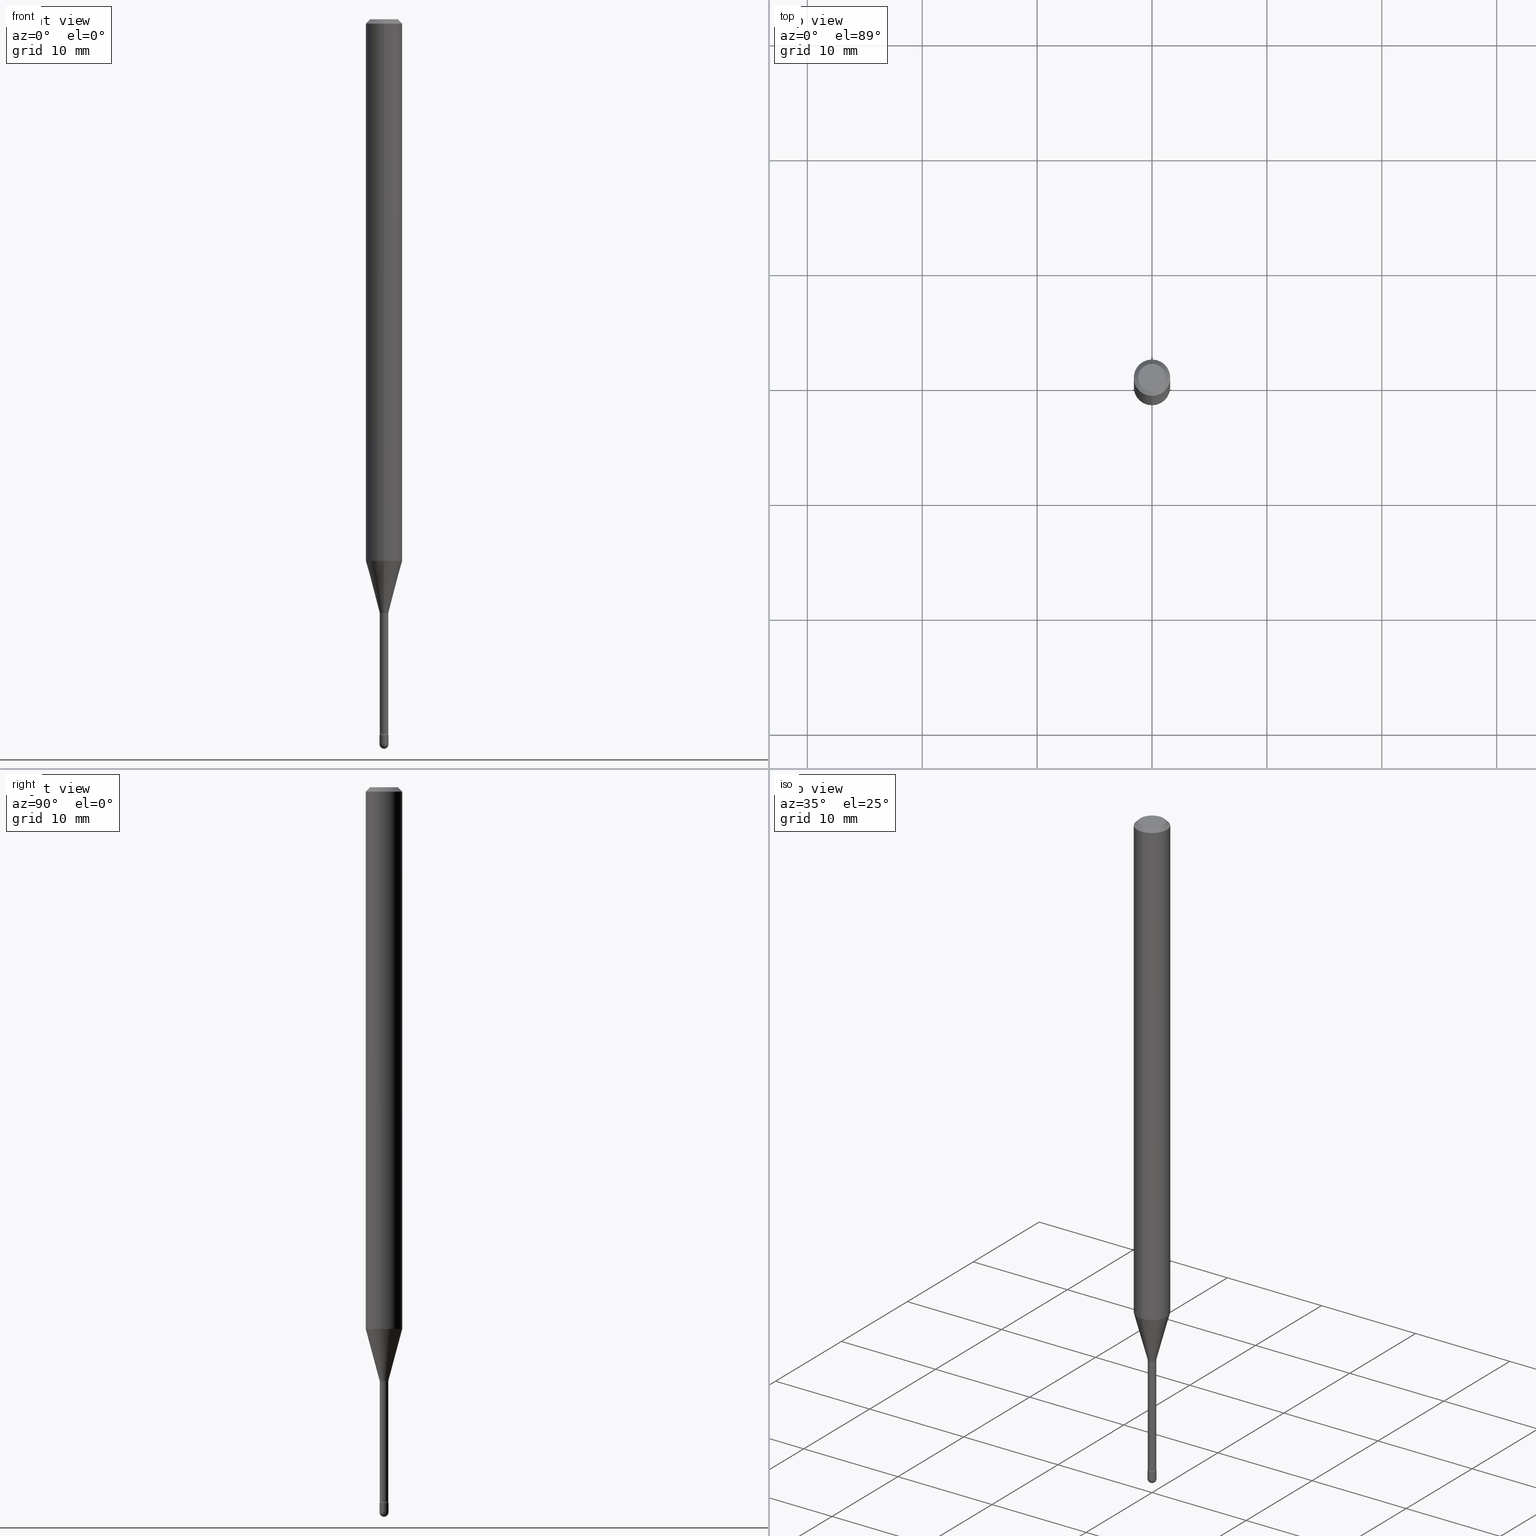
[diagram: canonical four-view strip — front | top / right | iso, engineering-drawing reading convention]
A machine part, canonical four-view strip (front | top / right | iso — engineering-drawing reading convention). The complete STEP part file that produces these views, byte-faithful:
ISO-10303-21;
HEADER;
FILE_DESCRIPTION (( 'STEP AP203' ),
    '1' );
FILE_NAME ('03918.STEP',
    '2024-04-09T21:09:49',
    ( '' ),
    ( '' ),
    'SwSTEP 2.0',
    'SolidWorks 2023',
    '' );
FILE_SCHEMA (( 'CONFIG_CONTROL_DESIGN' ));
ENDSEC;

DATA;
#1 = DIRECTION ( 'NONE',  ( -6.982962677686265922E-15, -1.000000000000000000, 3.491478612548805977E-15 ) ) ;
#2 = EDGE_LOOP ( 'NONE', ( #344, #262 ) ) ;
#3 = FACE_OUTER_BOUND ( 'NONE', #138, .T. ) ;
#4 = ADVANCED_FACE ( 'NONE', ( #357 ), #532, .F. ) ;
#5 = APPROVAL_ROLE ( '' ) ;
#6 = ORIENTED_EDGE ( 'NONE', *, *, #393, .T. ) ;
#7 = CARTESIAN_POINT ( 'NONE',  ( -1.051711872097320102E-16, -0.01506111260567108076, -2.033092501787272965 ) ) ;
#8 = DATE_AND_TIME ( #399, #505 ) ;
#9 = APPLICATION_CONTEXT ( 'configuration controlled 3d designs of mechanical parts and assemblies' ) ;
#10 = CC_DESIGN_PERSON_AND_ORGANIZATION_ASSIGNMENT ( #362, #463, ( #13 ) ) ;
#11 = CARTESIAN_POINT ( 'NONE',  ( 3.668206064919468132E-31, -5.237217918823237660E-17, -0.01500000000000008271 ) ) ;
#12 = VECTOR ( 'NONE', #232, 39.37007874015748143 ) ;
#13 = PRODUCT_DEFINITION_FORMATION_WITH_SPECIFIED_SOURCE ( 'ANY', '', #167, .NOT_KNOWN. ) ;
#14 = LINE ( 'NONE', #17, #166 ) ;
#15 = DIRECTION ( 'NONE',  ( -6.982962677686265922E-15, -1.000000000000000000, 4.370956789862821150E-15 ) ) ;
#16 = DIRECTION ( 'NONE',  ( -2.445470709946298928E-29, 3.491478612548805977E-15, 1.000000000000000000 ) ) ;
#17 = CARTESIAN_POINT ( 'NONE',  ( -4.364351673553916201E-16, -0.06250000000000000000, 6.962908121755465107E-16 ) ) ;
#18 = APPROVAL_ROLE ( '' ) ;
#19 = EDGE_CURVE ( 'NONE', #301, #511, #351, .T. ) ;
#20 = CARTESIAN_POINT ( 'NONE',  ( 4.538911420766442433E-29, -6.480352467688133493E-15, -1.856048163777072713 ) ) ;
#21 = VERTEX_POINT ( 'NONE', #110 ) ;
#22 = VECTOR ( 'NONE', #345, 39.37007874015748143 ) ;
#23 =( GEOMETRIC_REPRESENTATION_CONTEXT ( 3 ) GLOBAL_UNCERTAINTY_ASSIGNED_CONTEXT ( ( #515 ) ) GLOBAL_UNIT_ASSIGNED_CONTEXT ( ( #313, #525, #300 ) ) REPRESENTATION_CONTEXT ( 'NONE', 'WORKASPACE' ) );
#24 = DIRECTION ( 'NONE',  ( 1.000000000000000000, -6.982962677686301420E-15, 0.000000000000000000 ) ) ;
#25 = CARTESIAN_POINT ( 'NONE',  ( 6.075767248966972494E-29, -8.674585386355795965E-15, -2.484500000000000153 ) ) ;
#26 = DATE_AND_TIME ( #320, #82 ) ;
#27 = ADVANCED_FACE ( 'NONE', ( #537 ), #457, .F. ) ;
#28 = DIRECTION ( 'NONE',  ( -2.438088387897960049E-29, 3.491481338843145188E-15, 1.000000000000000000 ) ) ;
#29 = CC_DESIGN_PERSON_AND_ORGANIZATION_ASSIGNMENT ( #367, #465, ( #13 ) ) ;
#30 = ORIENTED_EDGE ( 'NONE', *, *, #393, .F. ) ;
#31 = AXIS2_PLACEMENT_3D ( 'NONE', #423, #28, #202 ) ;
#32 = CARTESIAN_POINT ( 'NONE',  ( -1.169113584055446105E-44, 1.669184350826100908E-30, 4.780733988912460139E-16 ) ) ;
#33 = ORIENTED_EDGE ( 'NONE', *, *, #170, .F. ) ;
#34 = FACE_OUTER_BOUND ( 'NONE', #148, .T. ) ;
#35 = ORIENTED_EDGE ( 'NONE', *, *, #176, .T. ) ;
#36 = CYLINDRICAL_SURFACE ( 'NONE', #228, 0.06250000000000000000 ) ;
#37 = CIRCLE ( 'NONE', #250, 0.01549999999999993744 ) ;
#38 = ORIENTED_EDGE ( 'NONE', *, *, #458, .F. ) ;
#39 = EDGE_CURVE ( 'NONE', #388, #293, #184, .T. ) ;
#40 = ORIENTED_EDGE ( 'NONE', *, *, #304, .F. ) ;
#41 = DIRECTION ( 'NONE',  ( 6.982962677686265922E-15, 1.000000000000000000, -3.483106191921935554E-15 ) ) ;
#42 = EDGE_CURVE ( 'NONE', #136, #21, #417, .T. ) ;
#43 = ORIENTED_EDGE ( 'NONE', *, *, #210, .F. ) ;
#44 = DIRECTION ( 'NONE',  ( -2.445470709946298928E-29, 3.491478612548805977E-15, 1.000000000000000000 ) ) ;
#45 = CARTESIAN_POINT ( 'NONE',  ( 5.985892781288177865E-29, -8.546255139296640024E-15, -2.447746667724196357 ) ) ;
#46 = CLOSED_SHELL ( 'NONE', ( #411, #290, #241, #187, #483, #470, #424, #77, #235, #61, #27, #4, #523, #85 ) ) ;
#47 = EDGE_LOOP ( 'NONE', ( #467, #252, #359, #338 ) ) ;
#48 = AXIS2_PLACEMENT_3D ( 'NONE', #435, #189, #15 ) ;
#49 = DIRECTION ( 'NONE',  ( -6.982962677686266711E-15, -1.000000000000000000, 0.000000000000000000 ) ) ;
#50 = CYLINDRICAL_SURFACE ( 'NONE', #564, 0.01549999999999999989 ) ;
#51 = DIRECTION ( 'NONE',  ( -2.445470709946298928E-29, 3.491478612548805977E-15, 1.000000000000000000 ) ) ;
#52 = DIRECTION ( 'NONE',  ( 2.445470709946298367E-29, -3.491478612548805977E-15, -1.000000000000000000 ) ) ;
#53 = CARTESIAN_POINT ( 'NONE',  ( 5.985892781288177865E-29, -8.546255139296640024E-15, -2.447746667724196357 ) ) ;
#54 = EDGE_LOOP ( 'NONE', ( #80, #318, #175, #477 ) ) ;
#55 = AXIS2_PLACEMENT_3D ( 'NONE', #98, #561, #563 ) ;
#56 = AXIS2_PLACEMENT_3D ( 'NONE', #358, #452, #541 ) ;
#57 = LOCAL_TIME ( 17, 9, 49.00000000000000000, #542 ) ;
#58 = CARTESIAN_POINT ( 'NONE',  ( 2.755524256971760080E-16, 0.01506111260565688378, -2.033092501787272965 ) ) ;
#59 = APPROVAL_STATUS ( 'not_yet_approved' ) ;
#60 = CARTESIAN_POINT ( 'NONE',  ( 4.364351673553919652E-16, 0.06249999999999995143, -0.01500000000000030129 ) ) ;
#61 = ADVANCED_FACE ( 'NONE', ( #491 ), #445, .F. ) ;
#62 = LINE ( 'NONE', #233, #521 ) ;
#63 = APPROVAL ( #157, 'UNSPECIFIED' ) ;
#64 = CARTESIAN_POINT ( 'NONE',  ( 5.998734981572139453E-29, -8.564603724182235719E-15, -2.452999999999999847 ) ) ;
#65 = DIRECTION ( 'NONE',  ( -2.445470709946298367E-29, 3.491478612548805977E-15, 1.000000000000000000 ) ) ;
#66 = VECTOR ( 'NONE', #482, 39.37007874015748143 ) ;
#67 = CIRCLE ( 'NONE', #451, 0.01549999999999993744 ) ;
#68 = FACE_OUTER_BOUND ( 'NONE', #383, .T. ) ;
#69 = CC_DESIGN_APPROVAL ( #397, ( #13 ) ) ;
#70 = CALENDAR_DATE ( 2024, 9, 4 ) ;
#71 = ORIENTED_EDGE ( 'NONE', *, *, #507, .T. ) ;
#72 = DIRECTION ( 'NONE',  ( -6.982962677686266711E-15, -1.000000000000000000, 0.000000000000000000 ) ) ;
#73 = VERTEX_POINT ( 'NONE', #273 ) ;
#74 = CIRCLE ( 'NONE', #271, 0.04749999999999999362 ) ;
#75 = VECTOR ( 'NONE', #516, 39.37007874015748854 ) ;
#76 = CYLINDRICAL_SURFACE ( 'NONE', #108, 0.01455000000000001605 ) ;
#77 = ADVANCED_FACE ( 'NONE', ( #114 ), #400, .T. ) ;
#78 = FACE_OUTER_BOUND ( 'NONE', #121, .T. ) ;
#79 = CC_DESIGN_PERSON_AND_ORGANIZATION_ASSIGNMENT ( #105, #303, ( #167 ) ) ;
#80 = ORIENTED_EDGE ( 'NONE', *, *, #42, .F. ) ;
#81 = EDGE_CURVE ( 'NONE', #558, #301, #497, .T. ) ;
#82 = LOCAL_TIME ( 17, 9, 49.00000000000000000, #372 ) ;
#83 = ORIENTED_EDGE ( 'NONE', *, *, #263, .T. ) ;
#84 = VERTEX_POINT ( 'NONE', #275 ) ;
#85 = ADVANCED_FACE ( 'NONE', ( #365 ), #118, .F. ) ;
#86 = DIRECTION ( 'NONE',  ( 6.982962677686265922E-15, 1.000000000000000000, 0.000000000000000000 ) ) ;
#87 = ORIENTED_EDGE ( 'NONE', *, *, #437, .T. ) ;
#88 = ORIENTED_EDGE ( 'NONE', *, *, #255, .F. ) ;
#89 = DIRECTION ( 'NONE',  ( -2.445468806185136597E-29, 3.491481338843145583E-15, 1.000000000000000000 ) ) ;
#90 = DIRECTION ( 'NONE',  ( 1.000000000000000000, 0.000000000000000000, 0.000000000000000000 ) ) ;
#91 = VERTEX_POINT ( 'NONE', #154 ) ;
#92 = DIRECTION ( 'NONE',  ( -6.982962677686266711E-15, -1.000000000000000000, 0.000000000000000000 ) ) ;
#93 = APPLICATION_PROTOCOL_DEFINITION ( 'international standard', 'config_control_design', 1994, #481 ) ;
#94 = AXIS2_PLACEMENT_3D ( 'NONE', #547, #455, #434 ) ;
#95 = ORIENTED_EDGE ( 'NONE', *, *, #546, .F. ) ;
#96 = CIRCLE ( 'NONE', #488, 0.01549999999999999989 ) ;
#97 = EDGE_CURVE ( 'NONE', #133, #73, #172, .T. ) ;
#98 = CARTESIAN_POINT ( 'NONE',  ( -2.063465471255793699E-16, -0.02955000000000711224, -2.036974787463810888 ) ) ;
#99 = COORDINATED_UNIVERSAL_TIME_OFFSET ( 5, 0, .BEHIND. ) ;
#100 = ORIENTED_EDGE ( 'NONE', *, *, #447, .T. ) ;
#101 = DIRECTION ( 'NONE',  ( -6.982962677686265922E-15, -1.000000000000000000, 0.000000000000000000 ) ) ;
#102 = LINE ( 'NONE', #405, #439 ) ;
#103 = CARTESIAN_POINT ( 'NONE',  ( 5.985888121363136129E-29, -8.546261812574526278E-15, -2.447746667724196357 ) ) ;
#104 = SPHERICAL_SURFACE ( 'NONE', #512, 0.01549999999999993744 ) ;
#105 = PERSON_AND_ORGANIZATION ( #107, #238 ) ;
#106 = ORIENTED_EDGE ( 'NONE', *, *, #19, .T. ) ;
#107 = PERSON ( 'UNSPECIFIED', 'UNSPECIFIED', 'UNSPECIFIED', ('UNSPECIFIED'), ('UNSPECIFIED'), ('UNSPECIFIED') ) ;
#108 = AXIS2_PLACEMENT_3D ( 'NONE', #132, #428, #385 ) ;
#109 = FACE_OUTER_BOUND ( 'NONE', #522, .T. ) ;
#110 = CARTESIAN_POINT ( 'NONE',  ( 1.101341240428755801E-16, 0.01549999999999144597, -2.452999999999999847 ) ) ;
#111 = DIRECTION ( 'NONE',  ( -2.445470709946298928E-29, 3.491478612548805977E-15, 1.000000000000000000 ) ) ;
#112 = PERSON_AND_ORGANIZATION ( #107, #238 ) ;
#113 = EDGE_LOOP ( 'NONE', ( #195, #371, #329, #142 ) ) ;
#114 = FACE_OUTER_BOUND ( 'NONE', #113, .T. ) ;
#115 = EDGE_CURVE ( 'NONE', #511, #301, #553, .T. ) ;
#116 = ADVANCED_BREP_SHAPE_REPRESENTATION ( '03918', ( #122, #498, #307 ), #23 ) ;
#117 = DIRECTION ( 'NONE',  ( -6.982962677686266711E-15, -1.000000000000000000, 0.000000000000000000 ) ) ;
#118 = TOROIDAL_SURFACE ( 'NONE', #94, 0.02954999999999999988, 0.01500000000000002373 ) ;
#119 = CARTESIAN_POINT ( 'NONE',  ( -1.016021069602754986E-16, -0.01455000000000857344, -2.447746667724196357 ) ) ;
#120 = EDGE_CURVE ( 'NONE', #136, #293, #384, .T. ) ;
#121 = EDGE_LOOP ( 'NONE', ( #246, #484 ) ) ;
#122 = MANIFOLD_SOLID_BREP ( 'Body-Move/Copy2[1]', #249 ) ;
#123 = AXIS2_PLACEMENT_3D ( 'NONE', #337, #214, #519 ) ;
#124 = CIRCLE ( 'NONE', #478, 0.01549999999999999989 ) ;
#125 = APPROVAL ( #59, 'UNSPECIFIED' ) ;
#126 = DIRECTION ( 'NONE',  ( -6.982962677686266711E-15, -1.000000000000000000, 0.000000000000000000 ) ) ;
#127 = ORIENTED_EDGE ( 'NONE', *, *, #120, .F. ) ;
#128 = DIRECTION ( 'NONE',  ( -2.445470709946298928E-29, 3.491478612548805977E-15, 1.000000000000000000 ) ) ;
#129 = ADVANCED_FACE ( 'NONE', ( #143 ), #50, .T. ) ;
#130 = ORIENTED_EDGE ( 'NONE', *, *, #550, .T. ) ;
#131 = EDGE_LOOP ( 'NONE', ( #43, #266, #533, #106 ) ) ;
#132 = CARTESIAN_POINT ( 'NONE',  ( -1.169113584055446105E-44, 1.669184350826100908E-30, 4.780733988912460139E-16 ) ) ;
#133 = VERTEX_POINT ( 'NONE', #489 ) ;
#134 = CARTESIAN_POINT ( 'NONE',  ( 1.067590460480151308E-16, 0.01454999999999148294, -2.447746667724196357 ) ) ;
#135 = AXIS2_PLACEMENT_3D ( 'NONE', #415, #456, #312 ) ;
#136 = VERTEX_POINT ( 'NONE', #134 ) ;
#137 = CARTESIAN_POINT ( 'NONE',  ( 4.971868163732220169E-29, -7.098498987323608591E-15, -2.033092501787272965 ) ) ;
#138 = EDGE_LOOP ( 'NONE', ( #40, #6, #520, #213 ) ) ;
#139 = FACE_OUTER_BOUND ( 'NONE', #219, .T. ) ;
#140 = APPLICATION_PROTOCOL_DEFINITION ( 'international standard', 'config_control_design', 1994, #9 ) ;
#141 = EDGE_CURVE ( 'NONE', #331, #464, #425, .T. ) ;
#142 = ORIENTED_EDGE ( 'NONE', *, *, #19, .F. ) ;
#143 = FACE_OUTER_BOUND ( 'NONE', #242, .T. ) ;
#144 = CARTESIAN_POINT ( 'NONE',  ( 5.998734981572139453E-29, -8.564603724182235719E-15, -2.452999999999999847 ) ) ;
#145 = VERTEX_POINT ( 'NONE', #257 ) ;
#146 = CIRCLE ( 'NONE', #341, 0.01455000000000002819 ) ;
#147 = DIRECTION ( 'NONE',  ( -6.982962677686265922E-15, -1.000000000000000000, 3.483106191921935554E-15 ) ) ;
#148 = EDGE_LOOP ( 'NONE', ( #127, #376, #71, #33 ) ) ;
#149 = CARTESIAN_POINT ( 'NONE',  ( 4.440892098501077785E-16, 0.06249999999999351213, -1.856048163777072935 ) ) ;
#150 = DIRECTION ( 'NONE',  ( -2.445468806185136877E-29, 3.491481338843145188E-15, 1.000000000000000000 ) ) ;
#151 = EDGE_LOOP ( 'NONE', ( #211, #449, #514, #416 ) ) ;
#152 = EDGE_CURVE ( 'NONE', #331, #145, #535, .T. ) ;
#153 = DIRECTION ( 'NONE',  ( -2.445470709946298928E-29, 3.491478612548805977E-15, 1.000000000000000000 ) ) ;
#154 = CARTESIAN_POINT ( 'NONE',  ( -0.01549999999999999989, -8.509460431226201399E-15, -2.484500000000000153 ) ) ;
#155 = AXIS2_PLACEMENT_3D ( 'NONE', #446, #443, #41 ) ;
#156 = CARTESIAN_POINT ( 'NONE',  ( 6.075767248966972494E-29, -8.674585386355795965E-15, -2.484500000000000153 ) ) ;
#157 = APPROVAL_STATUS ( 'not_yet_approved' ) ;
#158 = CARTESIAN_POINT ( 'NONE',  ( 2.099653784171698040E-16, 0.02954999999999150667, -2.447746667724196357 ) ) ;
#159 = DIRECTION ( 'NONE',  ( -6.982962677686265922E-15, -1.000000000000000000, 0.000000000000000000 ) ) ;
#160 = APPROVAL_STATUS ( 'not_yet_approved' ) ;
#161 = CARTESIAN_POINT ( 'NONE',  ( 6.075767248966972494E-29, -8.674585386355795965E-15, -2.484500000000000153 ) ) ;
#162 = DATE_AND_TIME ( #286, #57 ) ;
#163 = AXIS2_PLACEMENT_3D ( 'NONE', #269, #65, #186 ) ;
#164 = ORIENTED_EDGE ( 'NONE', *, *, #309, .F. ) ;
#165 = CC_DESIGN_PERSON_AND_ORGANIZATION_ASSIGNMENT ( #265, #444, ( #220 ) ) ;
#166 = VECTOR ( 'NONE', #404, 39.37007874015748143 ) ;
#167 = PRODUCT ( '03918', '03918', '', ( #346 ) ) ;
#168 = AXIS2_PLACEMENT_3D ( 'NONE', #198, #502, #200 ) ;
#169 = CC_DESIGN_SECURITY_CLASSIFICATION ( #555, ( #13 ) ) ;
#170 = EDGE_CURVE ( 'NONE', #293, #464, #460, .T. ) ;
#171 = DIRECTION ( 'NONE',  ( 1.000000000000000000, -6.982962677686266711E-15, 4.876176775795935232E-29 ) ) ;
#172 = CIRCLE ( 'NONE', #258, 0.01549999999999999989 ) ;
#173 = FACE_OUTER_BOUND ( 'NONE', #526, .T. ) ;
#174 = CIRCLE ( 'NONE', #272, 0.01549999999999999989 ) ;
#175 = ORIENTED_EDGE ( 'NONE', *, *, #562, .T. ) ;
#176 = EDGE_CURVE ( 'NONE', #91, #518, #373, .T. ) ;
#177 = DIRECTION ( 'NONE',  ( 0.000000000000000000, 0.000000000000000000, 1.000000000000000000 ) ) ;
#178 = ORIENTED_EDGE ( 'NONE', *, *, #152, .F. ) ;
#179 = CC_DESIGN_PERSON_AND_ORGANIZATION_ASSIGNMENT ( #323, #243, ( #555 ) ) ;
#180 = DIRECTION ( 'NONE',  ( -2.445468806185136597E-29, 3.491481338843145583E-15, 1.000000000000000000 ) ) ;
#181 = EDGE_LOOP ( 'NONE', ( #380, #287, #350, #207, #386 ) ) ;
#182 = CARTESIAN_POINT ( 'NONE',  ( 6.075767248966972494E-29, -8.674585386355795965E-15, -2.484500000000000153 ) ) ;
#183 = DIRECTION ( 'NONE',  ( -1.000000000000000000, 6.982962677686265922E-15, -4.883557194083112901E-29 ) ) ;
#184 = CIRCLE ( 'NONE', #326, 0.01500000000000002373 ) ;
#185 = APPROVAL_PERSON_ORGANIZATION ( #395, #125, #5 ) ;
#186 = DIRECTION ( 'NONE',  ( -6.982962677686265922E-15, -1.000000000000000000, 3.491478612548805977E-15 ) ) ;
#187 = ADVANCED_FACE ( 'NONE', ( #139 ), #339, .T. ) ;
#188 = CARTESIAN_POINT ( 'NONE',  ( 5.998739651498270749E-29, -8.564597036582221587E-15, -2.452999999999999847 ) ) ;
#189 = DIRECTION ( 'NONE',  ( -2.445470709946298928E-29, 3.491478612548805977E-15, 1.000000000000000000 ) ) ;
#190 = DIRECTION ( 'NONE',  ( -6.982962677686265922E-15, -1.000000000000000000, 3.491478612548805977E-15 ) ) ;
#191 = CARTESIAN_POINT ( 'NONE',  ( 4.440892098501082715E-16, 0.06249999999999995143, -0.01500000000000030129 ) ) ;
#192 = ORIENTED_EDGE ( 'NONE', *, *, #39, .T. ) ;
#193 = DIRECTION ( 'NONE',  ( -6.982962677686265922E-15, -1.000000000000000000, 4.370956789862821150E-15 ) ) ;
#194 = DATE_TIME_ROLE ( 'classification_date' ) ;
#195 = ORIENTED_EDGE ( 'NONE', *, *, #437, .F. ) ;
#196 = CONICAL_SURFACE ( 'NONE', #155, 0.06250000000000000000, 0.7853981633974483900 ) ;
#197 = AXIS2_PLACEMENT_3D ( 'NONE', #448, #183, #343 ) ;
#198 = CARTESIAN_POINT ( 'NONE',  ( 2.023566700894860015E-45, -2.889086415038123091E-31, -8.274716157052648160E-17 ) ) ;
#199 = EDGE_CURVE ( 'NONE', #558, #442, #74, .T. ) ;
#200 = DIRECTION ( 'NONE',  ( -6.982962677686266711E-15, -1.000000000000000000, 3.491478612548805977E-15 ) ) ;
#201 = COORDINATED_UNIVERSAL_TIME_OFFSET ( 5, 0, .BEHIND. ) ;
#202 = DIRECTION ( 'NONE',  ( 1.000000000000000000, -6.982962677686265922E-15, 4.876176775795935793E-29 ) ) ;
#203 = AXIS2_PLACEMENT_3D ( 'NONE', #53, #44, #101 ) ;
#204 = CIRCLE ( 'NONE', #379, 0.01549999999999999989 ) ;
#205 = DIRECTION ( 'NONE',  ( -6.982962677686265922E-15, -1.000000000000000000, 3.491478612548807160E-15 ) ) ;
#206 = EDGE_CURVE ( 'NONE', #136, #292, #413, .T. ) ;
#207 = ORIENTED_EDGE ( 'NONE', *, *, #552, .F. ) ;
#208 = CIRCLE ( 'NONE', #389, 0.01506111260566398227 ) ;
#209 = CC_DESIGN_APPROVAL ( #125, ( #220 ) ) ;
#210 = EDGE_CURVE ( 'NONE', #442, #511, #479, .T. ) ;
#211 = ORIENTED_EDGE ( 'NONE', *, *, #206, .F. ) ;
#212 = DIRECTION ( 'NONE',  ( -2.445470709946298928E-29, 3.491478612548805977E-15, 1.000000000000000000 ) ) ;
#213 = ORIENTED_EDGE ( 'NONE', *, *, #447, .F. ) ;
#214 = DIRECTION ( 'NONE',  ( -2.445468806185136597E-29, 3.491481338843145583E-15, 1.000000000000000000 ) ) ;
#215 = ORIENTED_EDGE ( 'NONE', *, *, #115, .F. ) ;
#216 = DIRECTION ( 'NONE',  ( -2.445470709946298928E-29, 3.491478612548805977E-15, 1.000000000000000000 ) ) ;
#217 = CONICAL_SURFACE ( 'NONE', #390, 0.01506111260566398227, 0.2617993877991499074 ) ;
#218 = CARTESIAN_POINT ( 'NONE',  ( 3.840629472727447874E-16, 0.04749999999999999362, -2.485923956665947374E-16 ) ) ;
#219 = EDGE_LOOP ( 'NONE', ( #38, #506, #256, #508 ) ) ;
#220 = PRODUCT_DEFINITION ( 'UNKNOWN', '', #13, #432 ) ;
#221 = DIRECTION ( 'NONE',  ( 1.000000000000000000, -6.982962677686301420E-15, 0.000000000000000000 ) ) ;
#222 = ORIENTED_EDGE ( 'NONE', *, *, #546, .T. ) ;
#223 = EDGE_CURVE ( 'NONE', #388, #331, #208, .T. ) ;
#224 = COORDINATED_UNIVERSAL_TIME_OFFSET ( 5, 0, .BEHIND. ) ;
#225 = DIRECTION ( 'NONE',  ( 1.000000000000000000, -7.105427357601001070E-15, 4.926315475154606110E-29 ) ) ;
#226 = CYLINDRICAL_SURFACE ( 'NONE', #317, 0.01455000000000001605 ) ;
#227 =( LENGTH_UNIT ( ) NAMED_UNIT ( * ) SI_UNIT ( $, .METRE. ) );
#228 = AXIS2_PLACEMENT_3D ( 'NONE', #32, #128, #205 ) ;
#229 = DIRECTION ( 'NONE',  ( -6.982962677686265922E-15, -1.000000000000000000, 3.483106191921935554E-15 ) ) ;
#230 = DIRECTION ( 'NONE',  ( 1.000000000000000000, -6.982962677686238312E-15, 0.000000000000000000 ) ) ;
#231 = APPROVAL_DATE_TIME ( #261, #125 ) ;
#232 = DIRECTION ( 'NONE',  ( 4.937700262164548042E-15, 0.7071067811865451302, -0.7071067811865499042 ) ) ;
#233 = CARTESIAN_POINT ( 'NONE',  ( 4.440892098500625669E-16, 0.06250000000000000000, 2.598559856069456650E-16 ) ) ;
#234 = VERTEX_POINT ( 'NONE', #394 ) ;
#235 = ADVANCED_FACE ( 'NONE', ( #431 ), #196, .T. ) ;
#236 = DIRECTION ( 'NONE',  ( -2.445468806185136597E-29, 3.491481338843145583E-15, 1.000000000000000000 ) ) ;
#237 = AXIS2_PLACEMENT_3D ( 'NONE', #551, #153, #325 ) ;
#238 = ORGANIZATION ( 'UNSPECIFIED', 'UNSPECIFIED', '' ) ;
#239 = ADVANCED_FACE ( 'NONE', ( #3 ), #398, .T. ) ;
#240 = DIRECTION ( 'NONE',  ( -2.445470709946298928E-29, 3.491478612548805977E-15, 1.000000000000000000 ) ) ;
#241 = ADVANCED_FACE ( 'NONE', ( #254 ), #544, .F. ) ;
#242 = EDGE_LOOP ( 'NONE', ( #396, #35, #100, #530, #336 ) ) ;
#243 = PERSON_AND_ORGANIZATION_ROLE ( 'classification_officer' ) ;
#244 = AXIS2_PLACEMENT_3D ( 'NONE', #354, #360, #453 ) ;
#245 = CARTESIAN_POINT ( 'NONE',  ( 6.114334769336955252E-29, -8.727754245838525120E-15, -2.500000000000000000 ) ) ;
#246 = ORIENTED_EDGE ( 'NONE', *, *, #560, .T. ) ;
#247 = PLANE ( 'NONE',  #31 ) ;
#248 = ADVANCED_FACE ( 'NONE', ( #173 ), #104, .T. ) ;
#249 = CLOSED_SHELL ( 'NONE', ( #332, #248, #509, #239, #129 ) ) ;
#250 = AXIS2_PLACEMENT_3D ( 'NONE', #156, #369, #361 ) ;
#251 = LOCAL_TIME ( 17, 9, 49.00000000000000000, #201 ) ;
#252 = ORIENTED_EDGE ( 'NONE', *, *, #263, .F. ) ;
#253 = ORIENTED_EDGE ( 'NONE', *, *, #170, .T. ) ;
#254 = FACE_OUTER_BOUND ( 'NONE', #151, .T. ) ;
#255 = EDGE_CURVE ( 'NONE', #145, #511, #14, .T. ) ;
#256 = ORIENTED_EDGE ( 'NONE', *, *, #115, .T. ) ;
#257 = CARTESIAN_POINT ( 'NONE',  ( -4.364351673553463592E-16, -0.06250000000000649480, -1.856048163777072491 ) ) ;
#258 = AXIS2_PLACEMENT_3D ( 'NONE', #528, #180, #221 ) ;
#259 = CARTESIAN_POINT ( 'NONE',  ( 2.023566700894860015E-45, -2.889086415038123091E-31, -8.274716157052648160E-17 ) ) ;
#260 = AXIS2_PLACEMENT_3D ( 'NONE', #472, #382, #513 ) ;
#261 = DATE_AND_TIME ( #308, #461 ) ;
#262 = ORIENTED_EDGE ( 'NONE', *, *, #458, .T. ) ;
#263 = EDGE_CURVE ( 'NONE', #331, #388, #487, .T. ) ;
#264 = DIRECTION ( 'NONE',  ( 2.445470709946298928E-29, -3.491478612548805977E-15, -1.000000000000000000 ) ) ;
#265 = PERSON_AND_ORGANIZATION ( #107, #238 ) ;
#266 = ORIENTED_EDGE ( 'NONE', *, *, #199, .F. ) ;
#267 = DIRECTION ( 'NONE',  ( -2.445470709946298928E-29, 3.491478612548805977E-15, 1.000000000000000000 ) ) ;
#268 = CARTESIAN_POINT ( 'NONE',  ( 0.000000000000000000, 0.000000000000000000, 0.000000000000000000 ) ) ;
#269 = CARTESIAN_POINT ( 'NONE',  ( 1.082359215041971067E-16, 0.01549999999999143382, -2.452999999999999847 ) ) ;
#270 = DIRECTION ( 'NONE',  ( 1.000000000000000000, -6.982962677686265922E-15, 4.883557194083112340E-29 ) ) ;
#271 = AXIS2_PLACEMENT_3D ( 'NONE', #259, #216, #527 ) ;
#272 = AXIS2_PLACEMENT_3D ( 'NONE', #64, #492, #230 ) ;
#273 = CARTESIAN_POINT ( 'NONE',  ( 1.082359215041976490E-16, 0.01549999999999129678, -2.484500000000000153 ) ) ;
#274 = DIRECTION ( 'NONE',  ( -2.445470709946298928E-29, 3.491478612548805977E-15, 1.000000000000000000 ) ) ;
#275 = CARTESIAN_POINT ( 'NONE',  ( -1.082359215040772121E-16, -0.01550000000000857463, -2.452999999999999847 ) ) ;
#276 = CYLINDRICAL_SURFACE ( 'NONE', #135, 0.01549999999999999989 ) ;
#277 = APPROVAL_ROLE ( '' ) ;
#278 = ORIENTED_EDGE ( 'NONE', *, *, #324, .F. ) ;
#279 = DIRECTION ( 'NONE',  ( -2.445470709946298928E-29, 3.491478612548805977E-15, 1.000000000000000000 ) ) ;
#280 = CARTESIAN_POINT ( 'NONE',  ( -1.169113584055446105E-44, 1.669184350826100908E-30, 4.780733988912460139E-16 ) ) ;
#281 = DATE_TIME_ROLE ( 'creation_date' ) ;
#282 = CIRCLE ( 'NONE', #260, 0.01549999999999999989 ) ;
#283 = CIRCLE ( 'NONE', #295, 0.01455000000000000043 ) ;
#284 = CARTESIAN_POINT ( 'NONE',  ( 4.971868163732220169E-29, -7.098498987323608591E-15, -2.033092501787272965 ) ) ;
#285 = APPROVAL_DATE_TIME ( #26, #397 ) ;
#286 = CALENDAR_DATE ( 2024, 9, 4 ) ;
#287 = ORIENTED_EDGE ( 'NONE', *, *, #531, .T. ) ;
#288 = DIRECTION ( 'NONE',  ( -2.445470709946298928E-29, 3.491478612548805977E-15, 1.000000000000000000 ) ) ;
#289 = CIRCLE ( 'NONE', #48, 0.06250000000000000000 ) ;
#290 = ADVANCED_FACE ( 'NONE', ( #68 ), #226, .T. ) ;
#291 = CARTESIAN_POINT ( 'NONE',  ( -1.016021069603352671E-16, -0.01455000000000001605, 5.288744127038312523E-16 ) ) ;
#292 = VERTEX_POINT ( 'NONE', #119 ) ;
#293 = VERTEX_POINT ( 'NONE', #545 ) ;
#294 = AXIS2_PLACEMENT_3D ( 'NONE', #310, #485, #147 ) ;
#295 = AXIS2_PLACEMENT_3D ( 'NONE', #559, #557, #126 ) ;
#296 = DIRECTION ( 'NONE',  ( -4.851104656540964275E-15, -0.7071067811865500152, -0.7071067811865450192 ) ) ;
#297 = EDGE_LOOP ( 'NONE', ( #164, #347 ) ) ;
#298 = PRODUCT_RELATED_PRODUCT_CATEGORY ( 'detail', '', ( #167 ) ) ;
#299 = CARTESIAN_POINT ( 'NONE',  ( 5.985888121363136129E-29, -8.546261812574526278E-15, -2.447746667724196357 ) ) ;
#300 =( NAMED_UNIT ( * ) SI_UNIT ( $, .STERADIAN. ) SOLID_ANGLE_UNIT ( ) );
#301 = VERTEX_POINT ( 'NONE', #191 ) ;
#302 = DIRECTION ( 'NONE',  ( 6.982962677686265922E-15, 1.000000000000000000, -3.483106191921935554E-15 ) ) ;
#303 = PERSON_AND_ORGANIZATION_ROLE ( 'design_owner' ) ;
#304 = EDGE_CURVE ( 'NONE', #480, #518, #37, .T. ) ;
#305 = AXIS2_PLACEMENT_3D ( 'NONE', #103, #279, #190 ) ;
#306 = CARTESIAN_POINT ( 'NONE',  ( 0.000000000000000000, 0.000000000000000000, 0.000000000000000000 ) ) ;
#307 = AXIS2_PLACEMENT_3D ( 'NONE', #268, #177, #90 ) ;
#308 = CALENDAR_DATE ( 2024, 9, 4 ) ;
#309 = EDGE_CURVE ( 'NONE', #84, #21, #414, .T. ) ;
#310 = CARTESIAN_POINT ( 'NONE',  ( 3.668206064919468132E-31, -5.237217918823237660E-17, -0.01500000000000008271 ) ) ;
#311 = DIRECTION ( 'NONE',  ( 7.105427357600999492E-15, 1.000000000000000000, 0.000000000000000000 ) ) ;
#312 = DIRECTION ( 'NONE',  ( 1.000000000000000000, -6.982962677686266711E-15, 4.876176775795935232E-29 ) ) ;
#313 =( CONVERSION_BASED_UNIT ( 'INCH', #539 ) LENGTH_UNIT ( ) NAMED_UNIT ( #475 ) );
#314 = DIRECTION ( 'NONE',  ( 6.982962677686265922E-15, 1.000000000000000000, -3.491478612548805977E-15 ) ) ;
#315 = DIRECTION ( 'NONE',  ( -6.982962677686265133E-15, -1.000000000000000000, 3.491478612548803610E-15 ) ) ;
#316 = AXIS2_PLACEMENT_3D ( 'NONE', #524, #490, #92 ) ;
#317 = AXIS2_PLACEMENT_3D ( 'NONE', #280, #401, #315 ) ;
#318 = ORIENTED_EDGE ( 'NONE', *, *, #550, .F. ) ;
#319 = CARTESIAN_POINT ( 'NONE',  ( -1.051711872097320102E-16, -0.01506111260567108076, -2.033092501787272965 ) ) ;
#320 = CALENDAR_DATE ( 2024, 9, 4 ) ;
#321 = ORIENTED_EDGE ( 'NONE', *, *, #466, .F. ) ;
#322 = DIRECTION ( 'NONE',  ( 1.000000000000000000, -6.982962677686301420E-15, 0.000000000000000000 ) ) ;
#323 = PERSON_AND_ORGANIZATION ( #107, #238 ) ;
#324 = EDGE_CURVE ( 'NONE', #403, #145, #335, .T. ) ;
#325 = DIRECTION ( 'NONE',  ( -6.982962677686266711E-15, -1.000000000000000000, 0.000000000000000000 ) ) ;
#326 = AXIS2_PLACEMENT_3D ( 'NONE', #406, #225, #493 ) ;
#327 = APPROVAL_PERSON_ORGANIZATION ( #112, #397, #277 ) ;
#328 = CC_DESIGN_APPROVAL ( #63, ( #555 ) ) ;
#329 = ORIENTED_EDGE ( 'NONE', *, *, #255, .T. ) ;
#330 = FACE_OUTER_BOUND ( 'NONE', #543, .T. ) ;
#331 = VERTEX_POINT ( 'NONE', #319 ) ;
#332 = ADVANCED_FACE ( 'NONE', ( #499 ), #276, .T. ) ;
#333 = AXIS2_PLACEMENT_3D ( 'NONE', #158, #500, #311 ) ;
#334 = CARTESIAN_POINT ( 'NONE',  ( 1.070156415442438800E-16, 0.01506111260565688378, -2.033092501787272965 ) ) ;
#335 = CIRCLE ( 'NONE', #494, 0.06250000000000000000 ) ;
#336 = ORIENTED_EDGE ( 'NONE', *, *, #368, .F. ) ;
#337 = CARTESIAN_POINT ( 'NONE',  ( 6.075767248966972494E-29, -8.674585386355795965E-15, -2.484500000000000153 ) ) ;
#338 = ORIENTED_EDGE ( 'NONE', *, *, #501, .T. ) ;
#339 = CONICAL_SURFACE ( 'NONE', #450, 0.06250000000000000000, 0.7853981633974483900 ) ;
#340 = CC_DESIGN_DATE_AND_TIME_ASSIGNMENT ( #8, #281, ( #220 ) ) ;
#341 = AXIS2_PLACEMENT_3D ( 'NONE', #45, #51, #529 ) ;
#342 = CARTESIAN_POINT ( 'NONE',  ( 3.668206064919468132E-31, -5.237217918823237660E-17, -0.01500000000000008271 ) ) ;
#343 = DIRECTION ( 'NONE',  ( -6.982962677686265133E-15, -1.000000000000000000, 0.000000000000000000 ) ) ;
#344 = ORIENTED_EDGE ( 'NONE', *, *, #199, .T. ) ;
#345 = DIRECTION ( 'NONE',  ( -1.807323732225327773E-15, -0.2588190451025178529, 0.9659258262890690894 ) ) ;
#346 = MECHANICAL_CONTEXT ( 'NONE', #9, 'mechanical' ) ;
#347 = ORIENTED_EDGE ( 'NONE', *, *, #474, .F. ) ;
#348 = CARTESIAN_POINT ( 'NONE',  ( 1.033839680530946664E-16, 0.01455000000000001605, 4.272723850786609234E-16 ) ) ;
#349 = DIRECTION ( 'NONE',  ( -2.445468806185136877E-29, 3.491481338843145188E-15, 1.000000000000000000 ) ) ;
#350 = ORIENTED_EDGE ( 'NONE', *, *, #560, .F. ) ;
#351 = CIRCLE ( 'NONE', #363, 0.06250000000000000000 ) ;
#352 = CONICAL_SURFACE ( 'NONE', #554, 0.01506111260566398227, 0.2617993877991499074 ) ;
#353 = DIRECTION ( 'NONE',  ( -1.000000000000000000, 6.982962677686265922E-15, -4.883557194083112901E-29 ) ) ;
#354 = CARTESIAN_POINT ( 'NONE',  ( -1.169113584055446105E-44, 1.669184350826100908E-30, 4.780733988912460139E-16 ) ) ;
#355 = DIRECTION ( 'NONE',  ( 6.982962677686265922E-15, 1.000000000000000000, 0.000000000000000000 ) ) ;
#356 = DIRECTION ( 'NONE',  ( -2.445468806185136597E-29, 3.491481338843145583E-15, 1.000000000000000000 ) ) ;
#357 = FACE_OUTER_BOUND ( 'NONE', #54, .T. ) ;
#358 = CARTESIAN_POINT ( 'NONE',  ( 4.981358301728348415E-29, -7.112059458123878083E-15, -2.036974787463810888 ) ) ;
#359 = ORIENTED_EDGE ( 'NONE', *, *, #141, .T. ) ;
#360 = DIRECTION ( 'NONE',  ( -2.445470709946298928E-29, 3.491478612548805977E-15, 1.000000000000000000 ) ) ;
#361 = DIRECTION ( 'NONE',  ( -7.105427357601001070E-15, -1.000000000000000000, 0.000000000000000000 ) ) ;
#362 = PERSON_AND_ORGANIZATION ( #107, #238 ) ;
#363 = AXIS2_PLACEMENT_3D ( 'NONE', #11, #16, #229 ) ;
#364 = VECTOR ( 'NONE', #349, 39.37007874015748143 ) ;
#365 = FACE_OUTER_BOUND ( 'NONE', #47, .T. ) ;
#366 = DIRECTION ( 'NONE',  ( 6.982962677686265922E-15, 1.000000000000000000, 0.000000000000000000 ) ) ;
#367 = PERSON_AND_ORGANIZATION ( #107, #238 ) ;
#368 = EDGE_CURVE ( 'NONE', #436, #234, #174, .T. ) ;
#369 = DIRECTION ( 'NONE',  ( -1.000000000000000000, 7.105427357601001070E-15, -4.926315508542082329E-29 ) ) ;
#370 = PERSON_AND_ORGANIZATION ( #107, #238 ) ;
#371 = ORIENTED_EDGE ( 'NONE', *, *, #324, .T. ) ;
#372 = COORDINATED_UNIVERSAL_TIME_OFFSET ( 5, 0, .BEHIND. ) ;
#373 = CIRCLE ( 'NONE', #123, 0.01549999999999999989 ) ;
#374 = CARTESIAN_POINT ( 'NONE',  ( -4.364351673553912750E-16, -0.06250000000000005551, -0.01499999999999986587 ) ) ;
#375 = VECTOR ( 'NONE', #288, 39.37007874015748143 ) ;
#376 = ORIENTED_EDGE ( 'NONE', *, *, #206, .T. ) ;
#377 = CARTESIAN_POINT ( 'NONE',  ( 4.971868163732220169E-29, -7.098498987323608591E-15, -2.033092501787272965 ) ) ;
#378 = VECTOR ( 'NONE', #296, 39.37007874015748143 ) ;
#379 = AXIS2_PLACEMENT_3D ( 'NONE', #495, #236, #322 ) ;
#380 = ORIENTED_EDGE ( 'NONE', *, *, #419, .T. ) ;
#381 = APPROVAL_PERSON_ORGANIZATION ( #370, #63, #18 ) ;
#382 = DIRECTION ( 'NONE',  ( -2.445470709946298928E-29, 3.491478612548805977E-15, 1.000000000000000000 ) ) ;
#383 = EDGE_LOOP ( 'NONE', ( #130, #420, #429, #422 ) ) ;
#384 = LINE ( 'NONE', #348, #66 ) ;
#385 = DIRECTION ( 'NONE',  ( -6.982962677686265133E-15, -1.000000000000000000, 3.491478612548803610E-15 ) ) ;
#386 = ORIENTED_EDGE ( 'NONE', *, *, #97, .T. ) ;
#387 = ORIENTED_EDGE ( 'NONE', *, *, #223, .F. ) ;
#388 = VERTEX_POINT ( 'NONE', #58 ) ;
#389 = AXIS2_PLACEMENT_3D ( 'NONE', #137, #267, #49 ) ;
#390 = AXIS2_PLACEMENT_3D ( 'NONE', #377, #212, #72 ) ;
#391 = DIRECTION ( 'NONE',  ( -2.445470709946298928E-29, 3.491478612548805977E-15, 1.000000000000000000 ) ) ;
#392 = ORIENTED_EDGE ( 'NONE', *, *, #152, .T. ) ;
#393 = EDGE_CURVE ( 'NONE', #480, #73, #67, .T. ) ;
#394 = CARTESIAN_POINT ( 'NONE',  ( 0.01549999999999999989, -8.672839645686373673E-15, -2.452999999999999847 ) ) ;
#395 = PERSON_AND_ORGANIZATION ( #107, #238 ) ;
#396 = ORIENTED_EDGE ( 'NONE', *, *, #531, .F. ) ;
#397 = APPROVAL ( #160, 'UNSPECIFIED' ) ;
#398 = SPHERICAL_SURFACE ( 'NONE', #468, 0.01549999999999993744 ) ;
#399 = CALENDAR_DATE ( 2024, 9, 4 ) ;
#400 = CYLINDRICAL_SURFACE ( 'NONE', #244, 0.06250000000000000000 ) ;
#401 = DIRECTION ( 'NONE',  ( -2.445470709946298928E-29, 3.491478612548805977E-15, 1.000000000000000000 ) ) ;
#402 = LINE ( 'NONE', #441, #364 ) ;
#403 = VERTEX_POINT ( 'NONE', #149 ) ;
#404 = DIRECTION ( 'NONE',  ( -2.445470709946298928E-29, 3.491478612548805977E-15, 1.000000000000000000 ) ) ;
#405 = CARTESIAN_POINT ( 'NONE',  ( -0.01549999999999999989, 1.101341240428155280E-16, -7.624349389895103058E-31 ) ) ;
#406 = CARTESIAN_POINT ( 'NONE',  ( 2.099653784171593762E-16, 0.02954999999999288751, -2.036974787463810888 ) ) ;
#407 = CC_DESIGN_DATE_AND_TIME_ASSIGNMENT ( #162, #194, ( #555 ) ) ;
#408 = DIRECTION ( 'NONE',  ( -2.445468806185136597E-29, 3.491481338843145583E-15, 1.000000000000000000 ) ) ;
#409 = SECURITY_CLASSIFICATION_LEVEL ( 'unclassified' ) ;
#410 = ORIENTED_EDGE ( 'NONE', *, *, #419, .F. ) ;
#411 = ADVANCED_FACE ( 'NONE', ( #504 ), #566, .F. ) ;
#412 = CARTESIAN_POINT ( 'NONE',  ( -3.773273898774340269E-16, -0.04749999999999999362, 8.309807252554179885E-17 ) ) ;
#413 = CIRCLE ( 'NONE', #203, 0.01455000000000002819 ) ;
#414 = CIRCLE ( 'NONE', #426, 0.01549999999999999989 ) ;
#415 = CARTESIAN_POINT ( 'NONE',  ( 0.000000000000000000, 0.000000000000000000, 0.000000000000000000 ) ) ;
#416 = ORIENTED_EDGE ( 'NONE', *, *, #562, .F. ) ;
#417 = CIRCLE ( 'NONE', #333, 0.01500000000000002373 ) ;
#418 = CIRCLE ( 'NONE', #197, 0.01500000000000002373 ) ;
#419 = EDGE_CURVE ( 'NONE', #73, #91, #204, .T. ) ;
#420 = ORIENTED_EDGE ( 'NONE', *, *, #120, .T. ) ;
#421 = FACE_OUTER_BOUND ( 'NONE', #486, .T. ) ;
#422 = ORIENTED_EDGE ( 'NONE', *, *, #507, .F. ) ;
#423 = CARTESIAN_POINT ( 'NONE',  ( 5.998734981572139453E-29, -8.564603724182235719E-15, -2.452999999999999847 ) ) ;
#424 = ADVANCED_FACE ( 'NONE', ( #109 ), #352, .T. ) ;
#425 = CIRCLE ( 'NONE', #55, 0.01500000000000002373 ) ;
#426 = AXIS2_PLACEMENT_3D ( 'NONE', #188, #548, #159 ) ;
#427 = CARTESIAN_POINT ( 'NONE',  ( -1.016021069602853593E-16, -0.01455000000000711106, -2.036974787463810888 ) ) ;
#428 = DIRECTION ( 'NONE',  ( -2.445470709946298928E-29, 3.491478612548805977E-15, 1.000000000000000000 ) ) ;
#429 = ORIENTED_EDGE ( 'NONE', *, *, #501, .F. ) ;
#430 = LINE ( 'NONE', #334, #75 ) ;
#431 = FACE_OUTER_BOUND ( 'NONE', #131, .T. ) ;
#432 = DESIGN_CONTEXT ( 'detailed design', #481, 'design' ) ;
#433 = ORIENTED_EDGE ( 'NONE', *, *, #304, .T. ) ;
#434 = DIRECTION ( 'NONE',  ( -6.982962677686265922E-15, -1.000000000000000000, 3.491478612548805977E-15 ) ) ;
#435 = CARTESIAN_POINT ( 'NONE',  ( 4.538911420766442433E-29, -6.480352467688133493E-15, -1.856048163777072713 ) ) ;
#436 = VERTEX_POINT ( 'NONE', #454 ) ;
#437 = EDGE_CURVE ( 'NONE', #403, #301, #62, .T. ) ;
#438 = AXIS2_PLACEMENT_3D ( 'NONE', #299, #391, #1 ) ;
#439 = VECTOR ( 'NONE', #150, 39.37007874015748143 ) ;
#440 = CARTESIAN_POINT ( 'NONE',  ( -4.287811248607203282E-16, -0.06250000000000005551, -0.01499999999999986587 ) ) ;
#441 = CARTESIAN_POINT ( 'NONE',  ( 0.01549999999999999989, -1.082359215041371286E-16, 7.558074002483699918E-31 ) ) ;
#442 = VERTEX_POINT ( 'NONE', #412 ) ;
#443 = DIRECTION ( 'NONE',  ( 2.445470709946298928E-29, -3.491478612548805977E-15, -1.000000000000000000 ) ) ;
#444 = PERSON_AND_ORGANIZATION_ROLE ( 'creator' ) ;
#445 = PLANE ( 'NONE',  #476 ) ;
#446 = CARTESIAN_POINT ( 'NONE',  ( 3.668206064919468132E-31, -5.237217918823237660E-17, -0.01500000000000008271 ) ) ;
#447 = EDGE_CURVE ( 'NONE', #518, #133, #124, .T. ) ;
#448 = CARTESIAN_POINT ( 'NONE',  ( -2.063465471255696570E-16, -0.02955000000000859717, -2.447746667724196357 ) ) ;
#449 = ORIENTED_EDGE ( 'NONE', *, *, #42, .T. ) ;
#450 = AXIS2_PLACEMENT_3D ( 'NONE', #342, #264, #302 ) ;
#451 = AXIS2_PLACEMENT_3D ( 'NONE', #161, #270, #355 ) ;
#452 = DIRECTION ( 'NONE',  ( -2.445470709946298928E-29, 3.491478612548805977E-15, 1.000000000000000000 ) ) ;
#453 = DIRECTION ( 'NONE',  ( -6.982962677686265922E-15, -1.000000000000000000, 3.491478612548807160E-15 ) ) ;
#454 = CARTESIAN_POINT ( 'NONE',  ( -0.01549999999999999989, -8.509460431226201399E-15, -2.452999999999999847 ) ) ;
#455 = DIRECTION ( 'NONE',  ( -2.445470709946298928E-29, 3.491478612548805977E-15, 1.000000000000000000 ) ) ;
#456 = DIRECTION ( 'NONE',  ( -2.445468806185136597E-29, 3.491481338843145583E-15, 1.000000000000000000 ) ) ;
#457 = PLANE ( 'NONE',  #163 ) ;
#458 = EDGE_CURVE ( 'NONE', #442, #558, #534, .T. ) ;
#459 = SHAPE_DEFINITION_REPRESENTATION ( #469, #116 ) ;
#460 = CIRCLE ( 'NONE', #316, 0.01455000000000000043 ) ;
#461 = LOCAL_TIME ( 17, 9, 49.00000000000000000, #99 ) ;
#462 = DIRECTION ( 'NONE',  ( -1.000000000000000000, 6.982962677686265922E-15, -4.883557194083112901E-29 ) ) ;
#463 = PERSON_AND_ORGANIZATION_ROLE ( 'creator' ) ;
#464 = VERTEX_POINT ( 'NONE', #427 ) ;
#465 = PERSON_AND_ORGANIZATION_ROLE ( 'design_supplier' ) ;
#466 = EDGE_CURVE ( 'NONE', #388, #403, #430, .T. ) ;
#467 = ORIENTED_EDGE ( 'NONE', *, *, #39, .F. ) ;
#468 = AXIS2_PLACEMENT_3D ( 'NONE', #182, #353, #86 ) ;
#469 = PRODUCT_DEFINITION_SHAPE ( 'NONE', 'NONE',  #220 ) ;
#470 = ADVANCED_FACE ( 'NONE', ( #330 ), #217, .T. ) ;
#471 = ORIENTED_EDGE ( 'NONE', *, *, #141, .F. ) ;
#472 = CARTESIAN_POINT ( 'NONE',  ( 5.998739651498270749E-29, -8.564597036582221587E-15, -2.452999999999999847 ) ) ;
#473 = ORIENTED_EDGE ( 'NONE', *, *, #223, .T. ) ;
#474 = EDGE_CURVE ( 'NONE', #21, #84, #282, .T. ) ;
#475 = DIMENSIONAL_EXPONENTS ( 1.000000000000000000, 0.000000000000000000, 0.000000000000000000, 0.000000000000000000, 0.000000000000000000, 0.000000000000000000, 0.000000000000000000 ) ;
#476 = AXIS2_PLACEMENT_3D ( 'NONE', #540, #52, #314 ) ;
#477 = ORIENTED_EDGE ( 'NONE', *, *, #309, .T. ) ;
#478 = AXIS2_PLACEMENT_3D ( 'NONE', #25, #408, #24 ) ;
#479 = LINE ( 'NONE', #440, #378 ) ;
#480 = VERTEX_POINT ( 'NONE', #245 ) ;
#481 = APPLICATION_CONTEXT ( 'configuration controlled 3d designs of mechanical parts and assemblies' ) ;
#482 = DIRECTION ( 'NONE',  ( -2.445470709946298928E-29, 3.491478612548805977E-15, 1.000000000000000000 ) ) ;
#483 = ADVANCED_FACE ( 'NONE', ( #421 ), #36, .T. ) ;
#484 = ORIENTED_EDGE ( 'NONE', *, *, #368, .T. ) ;
#485 = DIRECTION ( 'NONE',  ( -2.445470709946298928E-29, 3.491478612548805977E-15, 1.000000000000000000 ) ) ;
#486 = EDGE_LOOP ( 'NONE', ( #222, #87, #215, #88 ) ) ;
#487 = CIRCLE ( 'NONE', #237, 0.01506111260566398227 ) ;
#488 = AXIS2_PLACEMENT_3D ( 'NONE', #144, #356, #536 ) ;
#489 = CARTESIAN_POINT ( 'NONE',  ( 0.01549999999999999989, -8.727830476773153796E-15, -2.484500000000000153 ) ) ;
#490 = DIRECTION ( 'NONE',  ( -2.445470709946298928E-29, 3.491478612548805977E-15, 1.000000000000000000 ) ) ;
#491 = FACE_OUTER_BOUND ( 'NONE', #2, .T. ) ;
#492 = DIRECTION ( 'NONE',  ( -2.445468806185136597E-29, 3.491481338843145583E-15, 1.000000000000000000 ) ) ;
#493 = DIRECTION ( 'NONE',  ( 7.105427357600999492E-15, 1.000000000000000000, 0.000000000000000000 ) ) ;
#494 = AXIS2_PLACEMENT_3D ( 'NONE', #20, #111, #193 ) ;
#495 = CARTESIAN_POINT ( 'NONE',  ( 6.075767248966972494E-29, -8.674585386355795965E-15, -2.484500000000000153 ) ) ;
#496 = CARTESIAN_POINT ( 'NONE',  ( -1.101341240427545269E-16, -0.01550000000000864402, -2.484500000000000153 ) ) ;
#497 = LINE ( 'NONE', #60, #12 ) ;
#498 = MANIFOLD_SOLID_BREP ( 'Body-Move/Copy2[2]', #46 ) ;
#499 = FACE_OUTER_BOUND ( 'NONE', #181, .T. ) ;
#500 = DIRECTION ( 'NONE',  ( 1.000000000000000000, -7.105427357601001070E-15, 4.926315475154606110E-29 ) ) ;
#501 = EDGE_CURVE ( 'NONE', #464, #293, #283, .T. ) ;
#502 = DIRECTION ( 'NONE',  ( -2.445470709946298928E-29, 3.491478612548805977E-15, 1.000000000000000000 ) ) ;
#503 = APPROVAL_DATE_TIME ( #549, #63 ) ;
#504 = FACE_OUTER_BOUND ( 'NONE', #565, .T. ) ;
#505 = LOCAL_TIME ( 17, 9, 49.00000000000000000, #224 ) ;
#506 = ORIENTED_EDGE ( 'NONE', *, *, #210, .T. ) ;
#507 = EDGE_CURVE ( 'NONE', #292, #464, #510, .T. ) ;
#508 = ORIENTED_EDGE ( 'NONE', *, *, #81, .F. ) ;
#509 = ADVANCED_FACE ( 'NONE', ( #78 ), #247, .T. ) ;
#510 = LINE ( 'NONE', #291, #375 ) ;
#511 = VERTEX_POINT ( 'NONE', #374 ) ;
#512 = AXIS2_PLACEMENT_3D ( 'NONE', #538, #462, #366 ) ;
#513 = DIRECTION ( 'NONE',  ( -6.982962677686265922E-15, -1.000000000000000000, 0.000000000000000000 ) ) ;
#514 = ORIENTED_EDGE ( 'NONE', *, *, #474, .T. ) ;
#515 = UNCERTAINTY_MEASURE_WITH_UNIT (LENGTH_MEASURE( 1.000000000000000082E-05 ), #313, 'distance_accuracy_value', 'NONE');
#516 = DIRECTION ( 'NONE',  ( 1.839019923739597554E-15, 0.2588190451025245697, 0.9659258262890670910 ) ) ;
#517 = ORIENTED_EDGE ( 'NONE', *, *, #176, .F. ) ;
#518 = VERTEX_POINT ( 'NONE', #496 ) ;
#519 = DIRECTION ( 'NONE',  ( 1.000000000000000000, -6.982962677686301420E-15, 0.000000000000000000 ) ) ;
#520 = ORIENTED_EDGE ( 'NONE', *, *, #97, .F. ) ;
#521 = VECTOR ( 'NONE', #240, 39.37007874015748143 ) ;
#522 = EDGE_LOOP ( 'NONE', ( #321, #473, #392, #278 ) ) ;
#523 = ADVANCED_FACE ( 'NONE', ( #34 ), #76, .T. ) ;
#524 = CARTESIAN_POINT ( 'NONE',  ( 4.981362179641837072E-29, -7.112053904731045127E-15, -2.036974787463810888 ) ) ;
#525 =( NAMED_UNIT ( * ) PLANE_ANGLE_UNIT ( ) SI_UNIT ( $, .RADIAN. ) );
#526 = EDGE_LOOP ( 'NONE', ( #30, #433, #517, #410 ) ) ;
#527 = DIRECTION ( 'NONE',  ( -6.982962677686266711E-15, -1.000000000000000000, 3.491478612548805977E-15 ) ) ;
#528 = CARTESIAN_POINT ( 'NONE',  ( 6.075767248966972494E-29, -8.674585386355795965E-15, -2.484500000000000153 ) ) ;
#529 = DIRECTION ( 'NONE',  ( -6.982962677686265922E-15, -1.000000000000000000, 0.000000000000000000 ) ) ;
#530 = ORIENTED_EDGE ( 'NONE', *, *, #552, .T. ) ;
#531 = EDGE_CURVE ( 'NONE', #91, #436, #102, .T. ) ;
#532 = TOROIDAL_SURFACE ( 'NONE', #305, 0.02955000000000005192, 0.01500000000000002373 ) ;
#533 = ORIENTED_EDGE ( 'NONE', *, *, #81, .T. ) ;
#534 = CIRCLE ( 'NONE', #168, 0.04749999999999999362 ) ;
#535 = LINE ( 'NONE', #7, #22 ) ;
#536 = DIRECTION ( 'NONE',  ( 1.000000000000000000, -6.982962677686238312E-15, 0.000000000000000000 ) ) ;
#537 = FACE_OUTER_BOUND ( 'NONE', #297, .T. ) ;
#538 = CARTESIAN_POINT ( 'NONE',  ( 6.075767248966972494E-29, -8.674585386355795965E-15, -2.484500000000000153 ) ) ;
#539 = LENGTH_MEASURE_WITH_UNIT ( LENGTH_MEASURE( 0.02539999999999999897 ), #227 );
#540 = CARTESIAN_POINT ( 'NONE',  ( 3.316907271900976096E-16, 0.04749999999999999362, 3.181788456429149187E-17 ) ) ;
#541 = DIRECTION ( 'NONE',  ( -6.982962677686265922E-15, -1.000000000000000000, 3.491478612548805977E-15 ) ) ;
#542 = COORDINATED_UNIVERSAL_TIME_OFFSET ( 5, 0, .BEHIND. ) ;
#543 = EDGE_LOOP ( 'NONE', ( #83, #556, #95, #178 ) ) ;
#544 = TOROIDAL_SURFACE ( 'NONE', #438, 0.02955000000000005192, 0.01500000000000002373 ) ;
#545 = CARTESIAN_POINT ( 'NONE',  ( 1.033839680531545582E-16, 0.01454999999999288980, -2.036974787463810888 ) ) ;
#546 = EDGE_CURVE ( 'NONE', #145, #403, #289, .T. ) ;
#547 = CARTESIAN_POINT ( 'NONE',  ( 4.981358301728348415E-29, -7.112059458123878083E-15, -2.036974787463810888 ) ) ;
#548 = DIRECTION ( 'NONE',  ( -2.445470709946298928E-29, 3.491478612548805977E-15, 1.000000000000000000 ) ) ;
#549 = DATE_AND_TIME ( #70, #251 ) ;
#550 = EDGE_CURVE ( 'NONE', #292, #136, #146, .T. ) ;
#551 = CARTESIAN_POINT ( 'NONE',  ( 4.971868163732220169E-29, -7.098498987323608591E-15, -2.033092501787272965 ) ) ;
#552 = EDGE_CURVE ( 'NONE', #133, #234, #402, .T. ) ;
#553 = CIRCLE ( 'NONE', #294, 0.06250000000000000000 ) ;
#554 = AXIS2_PLACEMENT_3D ( 'NONE', #284, #274, #117 ) ;
#555 = SECURITY_CLASSIFICATION ( '', '', #409 ) ;
#556 = ORIENTED_EDGE ( 'NONE', *, *, #466, .T. ) ;
#557 = DIRECTION ( 'NONE',  ( -2.445470709946298928E-29, 3.491478612548805977E-15, 1.000000000000000000 ) ) ;
#558 = VERTEX_POINT ( 'NONE', #218 ) ;
#559 = CARTESIAN_POINT ( 'NONE',  ( 4.981362179641837072E-29, -7.112053904731045127E-15, -2.036974787463810888 ) ) ;
#560 = EDGE_CURVE ( 'NONE', #234, #436, #96, .T. ) ;
#561 = DIRECTION ( 'NONE',  ( -1.000000000000000000, 6.982962677686265922E-15, -4.883557194083112901E-29 ) ) ;
#562 = EDGE_CURVE ( 'NONE', #292, #84, #418, .T. ) ;
#563 = DIRECTION ( 'NONE',  ( -6.982962677686265133E-15, -1.000000000000000000, 0.000000000000000000 ) ) ;
#564 = AXIS2_PLACEMENT_3D ( 'NONE', #306, #89, #171 ) ;
#565 = EDGE_LOOP ( 'NONE', ( #387, #192, #253, #471 ) ) ;
#566 = TOROIDAL_SURFACE ( 'NONE', #56, 0.02954999999999999988, 0.01500000000000002373 ) ;
ENDSEC;
END-ISO-10303-21;
